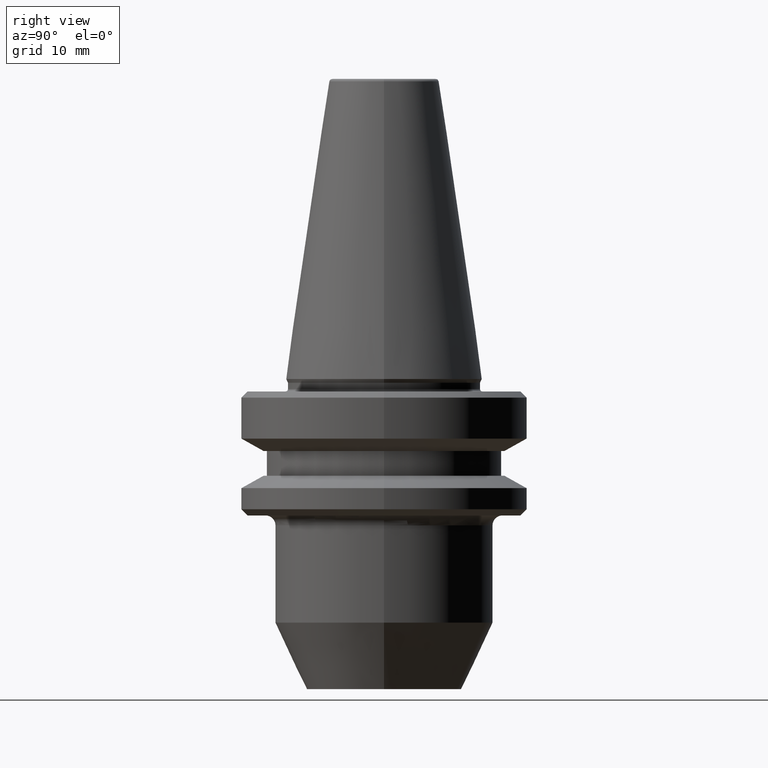
[diagram: clean part render]
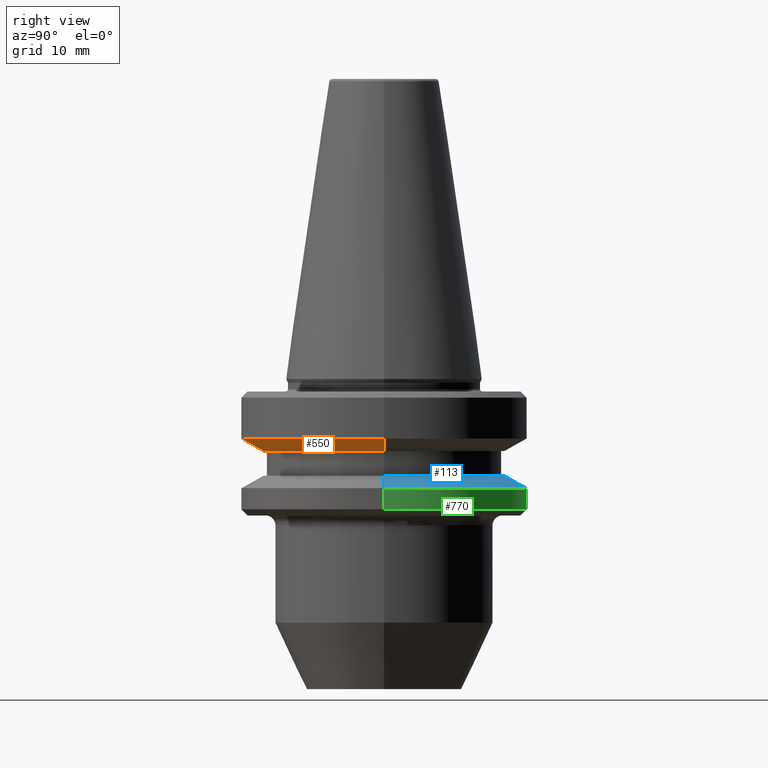
[diagram: same view with three faces highlighted in distinct colors, each labeled with its STEP entity id]
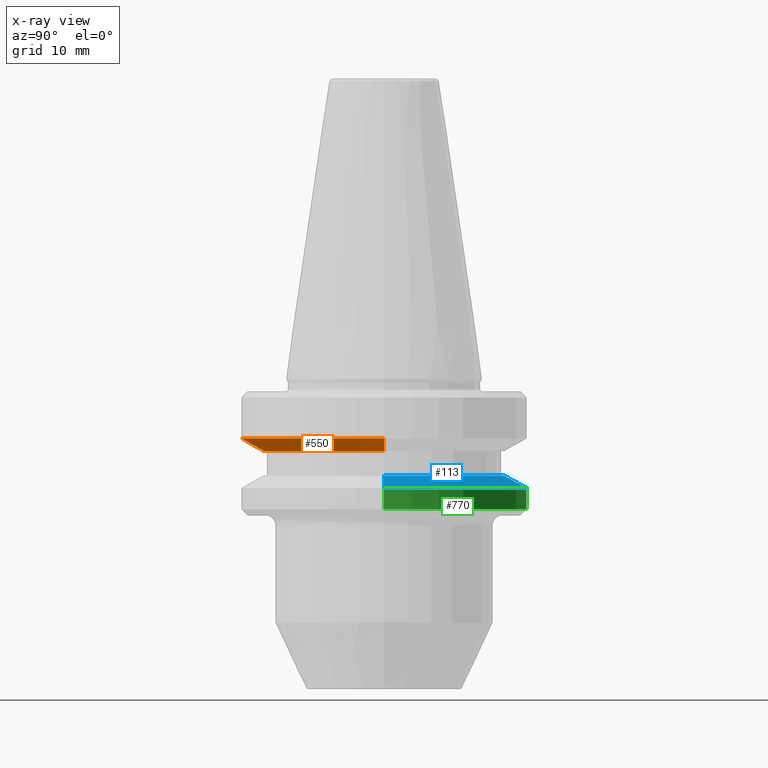
[diagram: x-ray of the same camera — body ghosted, the three highlighted faces saturated]
A machine part, right view with three faces highlighted in distinct colors.
The next image is the same camera in x-ray (body ghosted, the three faces saturated) — at least one of them is partly hidden behind the body in this view.
Their STEP definitions:

[orange] entity #550 — the highlighted conical surface has half-angle 60 deg.
#22 = CARTESIAN_POINT ( 'NONE',  ( 0.0000000000000000000, 0.0000000000000000000, -9.600117335054392200 ) ) ;
#52 = VERTEX_POINT ( 'NONE', #366 ) ;
#99 = LINE ( 'NONE', #349, #442 ) ;
#106 = ORIENTED_EDGE ( 'NONE', *, *, #359, .F. ) ;
#109 = VERTEX_POINT ( 'NONE', #530 ) ;
#126 = DIRECTION ( 'NONE',  ( 0.8660254037844363800, 0.0000000000000000000, 0.5000000000000041100 ) ) ;
#134 = CARTESIAN_POINT ( 'NONE',  ( -19.53610161513907800, 2.604585034559332900E-015, -11.59999999999938900 ) ) ;
#179 = VECTOR ( 'NONE', #126, 1000.000000000000000 ) ;
#221 = CARTESIAN_POINT ( 'NONE',  ( 19.53610161513907800, 0.0000000000000000000, -11.59999999999938900 ) ) ;
#269 = DIRECTION ( 'NONE',  ( -0.0000000000000000000, -0.0000000000000000000, 1.000000000000000000 ) ) ;
#304 = FACE_OUTER_BOUND ( 'NONE', #357, .T. ) ;
#328 = AXIS2_PLACEMENT_3D ( 'NONE', #474, #676, #792 ) ;
#349 = CARTESIAN_POINT ( 'NONE',  ( -19.53610161513907800, 2.392482431079750700E-015, -11.59999999999938900 ) ) ;
#357 = EDGE_LOOP ( 'NONE', ( #106, #836, #655, #906 ) ) ;
#359 = EDGE_CURVE ( 'NONE', #385, #878, #99, .T. ) ;
#366 = CARTESIAN_POINT ( 'NONE',  ( 23.00000000000002100, 0.0000000000000000000, -9.600117335054392200 ) ) ;
#385 = VERTEX_POINT ( 'NONE', #134 ) ;
#435 = CARTESIAN_POINT ( 'NONE',  ( -23.00000000000002100, 2.816687638038914700E-015, -9.600117335054392200 ) ) ;
#442 = VECTOR ( 'NONE', #624, 1000.000000000000000 ) ;
#474 = CARTESIAN_POINT ( 'NONE',  ( 0.0000000000000000000, 0.0000000000000000000, -11.59999999999938900 ) ) ;
#475 = CIRCLE ( 'NONE', #991, 19.53610161513907800 ) ;
#526 = LINE ( 'NONE', #221, #179 ) ;
#530 = CARTESIAN_POINT ( 'NONE',  ( 19.53610161513907800, 0.0000000000000000000, -11.59999999999938900 ) ) ;
#545 = DIRECTION ( 'NONE',  ( 1.000000000000000000, 0.0000000000000000000, 0.0000000000000000000 ) ) ;
#550 = ADVANCED_FACE ( 'NONE', ( #304 ), #617, .T. ) ;
#617 = CONICAL_SURFACE ( 'NONE', #328, 19.53610161513907800, 1.047197551196593000 ) ;
#624 = DIRECTION ( 'NONE',  ( -0.8660254037844363800, 1.060575238724904000E-016, 0.5000000000000041100 ) ) ;
#655 = ORIENTED_EDGE ( 'NONE', *, *, #900, .T. ) ;
#676 = DIRECTION ( 'NONE',  ( -0.0000000000000000000, -0.0000000000000000000, 1.000000000000000000 ) ) ;
#681 = CIRCLE ( 'NONE', #741, 23.00000000000002100 ) ;
#691 = DIRECTION ( 'NONE',  ( -0.0000000000000000000, -0.0000000000000000000, 1.000000000000000000 ) ) ;
#741 = AXIS2_PLACEMENT_3D ( 'NONE', #22, #691, #545 ) ;
#752 = CARTESIAN_POINT ( 'NONE',  ( 0.0000000000000000000, 0.0000000000000000000, -11.59999999999938900 ) ) ;
#761 = DIRECTION ( 'NONE',  ( 1.000000000000000000, 0.0000000000000000000, 0.0000000000000000000 ) ) ;
#778 = EDGE_CURVE ( 'NONE', #385, #109, #475, .T. ) ;
#791 = EDGE_CURVE ( 'NONE', #878, #52, #681, .T. ) ;
#792 = DIRECTION ( 'NONE',  ( 1.000000000000000000, 0.0000000000000000000, 0.0000000000000000000 ) ) ;
#836 = ORIENTED_EDGE ( 'NONE', *, *, #778, .T. ) ;
#878 = VERTEX_POINT ( 'NONE', #435 ) ;
#900 = EDGE_CURVE ( 'NONE', #109, #52, #526, .T. ) ;
#906 = ORIENTED_EDGE ( 'NONE', *, *, #791, .F. ) ;
#991 = AXIS2_PLACEMENT_3D ( 'NONE', #752, #269, #761 ) ;

[blue] entity #113 — the highlighted conical surface has half-angle 60 deg.
#14 = CARTESIAN_POINT ( 'NONE',  ( 19.53610161513785900, 2.604585034559258400E-015, -15.59999999999983600 ) ) ;
#26 = LINE ( 'NONE', #722, #762 ) ;
#41 = CARTESIAN_POINT ( 'NONE',  ( -23.00000000000002100, 2.816687638038915100E-015, -17.59988266494549700 ) ) ;
#72 = CIRCLE ( 'NONE', #418, 19.53610161513785900 ) ;
#107 = AXIS2_PLACEMENT_3D ( 'NONE', #382, #390, #953 ) ;
#111 = DIRECTION ( 'NONE',  ( -0.0000000000000000000, -0.0000000000000000000, 1.000000000000000000 ) ) ;
#113 = ADVANCED_FACE ( 'NONE', ( #677 ), #866, .T. ) ;
#156 = DIRECTION ( 'NONE',  ( -0.8660254037844404800, 0.0000000000000000000, -0.4999999999999967800 ) ) ;
#207 = EDGE_CURVE ( 'NONE', #426, #309, #368, .T. ) ;
#222 = DIRECTION ( 'NONE',  ( -0.0000000000000000000, -0.0000000000000000000, 1.000000000000000000 ) ) ;
#277 = CARTESIAN_POINT ( 'NONE',  ( 0.0000000000000000000, 0.0000000000000000000, -17.59988266494549700 ) ) ;
#309 = VERTEX_POINT ( 'NONE', #41 ) ;
#350 = VECTOR ( 'NONE', #156, 1000.000000000000100 ) ;
#356 = DIRECTION ( 'NONE',  ( 0.8660254037844404800, 1.060575238724909000E-016, -0.4999999999999967800 ) ) ;
#358 = ORIENTED_EDGE ( 'NONE', *, *, #460, .T. ) ;
#368 = CIRCLE ( 'NONE', #706, 23.00000000000002100 ) ;
#370 = CARTESIAN_POINT ( 'NONE',  ( 23.00000000000002100, 0.0000000000000000000, -17.59988266494549700 ) ) ;
#382 = CARTESIAN_POINT ( 'NONE',  ( 0.0000000000000000000, 0.0000000000000000000, -17.59988266494549700 ) ) ;
#390 = DIRECTION ( 'NONE',  ( 0.0000000000000000000, 0.0000000000000000000, -1.000000000000000000 ) ) ;
#394 = ORIENTED_EDGE ( 'NONE', *, *, #797, .F. ) ;
#418 = AXIS2_PLACEMENT_3D ( 'NONE', #528, #222, #845 ) ;
#426 = VERTEX_POINT ( 'NONE', #370 ) ;
#460 = EDGE_CURVE ( 'NONE', #663, #426, #26, .T. ) ;
#498 = CARTESIAN_POINT ( 'NONE',  ( -23.00000000000002100, 0.0000000000000000000, -17.59988266494549700 ) ) ;
#528 = CARTESIAN_POINT ( 'NONE',  ( 0.0000000000000000000, 0.0000000000000000000, -15.59999999999983600 ) ) ;
#620 = ORIENTED_EDGE ( 'NONE', *, *, #207, .T. ) ;
#663 = VERTEX_POINT ( 'NONE', #14 ) ;
#666 = DIRECTION ( 'NONE',  ( 1.000000000000000000, 0.0000000000000000000, 0.0000000000000000000 ) ) ;
#677 = FACE_OUTER_BOUND ( 'NONE', #937, .T. ) ;
#706 = AXIS2_PLACEMENT_3D ( 'NONE', #277, #111, #666 ) ;
#722 = CARTESIAN_POINT ( 'NONE',  ( 23.00000000000002100, 2.816687638038915100E-015, -17.59988266494549700 ) ) ;
#762 = VECTOR ( 'NONE', #356, 1000.000000000000100 ) ;
#797 = EDGE_CURVE ( 'NONE', #663, #882, #72, .T. ) ;
#845 = DIRECTION ( 'NONE',  ( 1.000000000000000000, 0.0000000000000000000, 0.0000000000000000000 ) ) ;
#854 = ORIENTED_EDGE ( 'NONE', *, *, #877, .F. ) ;
#866 = CONICAL_SURFACE ( 'NONE', #107, 23.00000000000002100, 1.047197551196601400 ) ;
#877 = EDGE_CURVE ( 'NONE', #882, #309, #959, .T. ) ;
#882 = VERTEX_POINT ( 'NONE', #999 ) ;
#937 = EDGE_LOOP ( 'NONE', ( #394, #358, #620, #854 ) ) ;
#953 = DIRECTION ( 'NONE',  ( -1.000000000000000000, 0.0000000000000000000, 0.0000000000000000000 ) ) ;
#959 = LINE ( 'NONE', #498, #350 ) ;
#999 = CARTESIAN_POINT ( 'NONE',  ( -19.53610161513785900, 0.0000000000000000000, -15.59999999999983600 ) ) ;

[green] entity #770 — the highlighted cylindrical surface (partial cylindrical patch) has radius 23 mm, axis along (-0, -0, 1).
#38 = CARTESIAN_POINT ( 'NONE',  ( 0.0000000000000000000, 0.0000000000000000000, 106.7296997704041000 ) ) ;
#41 = CARTESIAN_POINT ( 'NONE',  ( -23.00000000000002100, 2.816687638038915100E-015, -17.59988266494549700 ) ) ;
#111 = DIRECTION ( 'NONE',  ( -0.0000000000000000000, -0.0000000000000000000, 1.000000000000000000 ) ) ;
#138 = DIRECTION ( 'NONE',  ( -0.0000000000000000000, -0.0000000000000000000, 1.000000000000000000 ) ) ;
#164 = DIRECTION ( 'NONE',  ( -0.0000000000000000000, -0.0000000000000000000, 1.000000000000000000 ) ) ;
#207 = EDGE_CURVE ( 'NONE', #426, #309, #368, .T. ) ;
#238 = AXIS2_PLACEMENT_3D ( 'NONE', #612, #838, #982 ) ;
#244 = LINE ( 'NONE', #512, #628 ) ;
#277 = CARTESIAN_POINT ( 'NONE',  ( 0.0000000000000000000, 0.0000000000000000000, -17.59988266494549700 ) ) ;
#289 = CARTESIAN_POINT ( 'NONE',  ( 23.00000000000002100, 0.0000000000000000000, 106.7296997704041000 ) ) ;
#296 = CARTESIAN_POINT ( 'NONE',  ( -23.00000000000002100, 2.816687638038915100E-015, -20.99999999999989300 ) ) ;
#309 = VERTEX_POINT ( 'NONE', #41 ) ;
#365 = EDGE_CURVE ( 'NONE', #902, #309, #244, .T. ) ;
#368 = CIRCLE ( 'NONE', #706, 23.00000000000002100 ) ;
#370 = CARTESIAN_POINT ( 'NONE',  ( 23.00000000000002100, 0.0000000000000000000, -17.59988266494549700 ) ) ;
#426 = VERTEX_POINT ( 'NONE', #370 ) ;
#455 = DIRECTION ( 'NONE',  ( 1.000000000000000000, 0.0000000000000000000, 0.0000000000000000000 ) ) ;
#464 = ORIENTED_EDGE ( 'NONE', *, *, #977, .T. ) ;
#508 = AXIS2_PLACEMENT_3D ( 'NONE', #38, #138, #455 ) ;
#512 = CARTESIAN_POINT ( 'NONE',  ( -23.00000000000002100, 2.816687638038915100E-015, 106.7296997704041000 ) ) ;
#574 = CARTESIAN_POINT ( 'NONE',  ( 23.00000000000002100, 0.0000000000000000000, -20.99999999999989300 ) ) ;
#612 = CARTESIAN_POINT ( 'NONE',  ( 0.0000000000000000000, 0.0000000000000000000, -20.99999999999989300 ) ) ;
#618 = ORIENTED_EDGE ( 'NONE', *, *, #207, .F. ) ;
#628 = VECTOR ( 'NONE', #673, 1000.000000000000000 ) ;
#666 = DIRECTION ( 'NONE',  ( 1.000000000000000000, 0.0000000000000000000, 0.0000000000000000000 ) ) ;
#673 = DIRECTION ( 'NONE',  ( -0.0000000000000000000, -0.0000000000000000000, 1.000000000000000000 ) ) ;
#696 = ORIENTED_EDGE ( 'NONE', *, *, #859, .F. ) ;
#706 = AXIS2_PLACEMENT_3D ( 'NONE', #277, #111, #666 ) ;
#770 = ADVANCED_FACE ( 'NONE', ( #917 ), #940, .T. ) ;
#805 = EDGE_LOOP ( 'NONE', ( #464, #914, #618, #696 ) ) ;
#838 = DIRECTION ( 'NONE',  ( -0.0000000000000000000, -0.0000000000000000000, 1.000000000000000000 ) ) ;
#859 = EDGE_CURVE ( 'NONE', #905, #426, #903, .T. ) ;
#898 = CIRCLE ( 'NONE', #238, 23.00000000000002100 ) ;
#902 = VERTEX_POINT ( 'NONE', #296 ) ;
#903 = LINE ( 'NONE', #289, #992 ) ;
#905 = VERTEX_POINT ( 'NONE', #574 ) ;
#914 = ORIENTED_EDGE ( 'NONE', *, *, #365, .T. ) ;
#917 = FACE_OUTER_BOUND ( 'NONE', #805, .T. ) ;
#940 = CYLINDRICAL_SURFACE ( 'NONE', #508, 23.00000000000002100 ) ;
#977 = EDGE_CURVE ( 'NONE', #905, #902, #898, .T. ) ;
#982 = DIRECTION ( 'NONE',  ( 1.000000000000000000, 0.0000000000000000000, 0.0000000000000000000 ) ) ;
#992 = VECTOR ( 'NONE', #164, 1000.000000000000000 ) ;